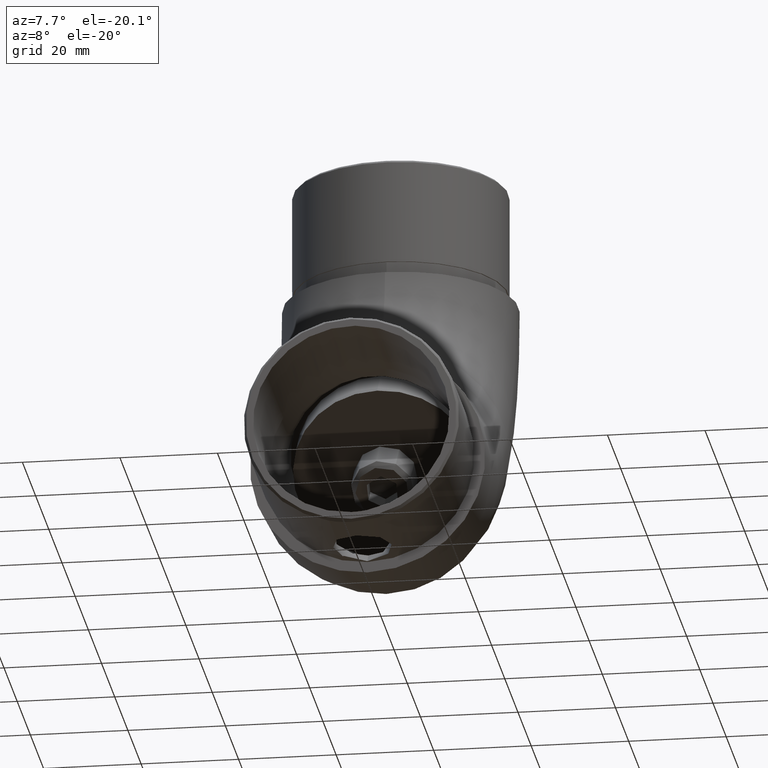
[diagram: clean part render]
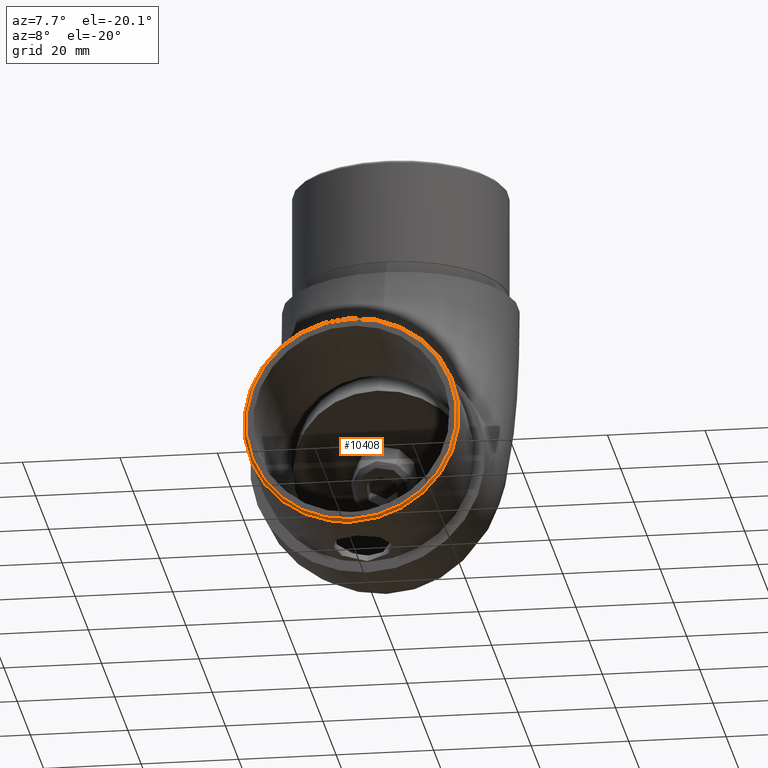
[diagram: same view with one face highlighted and labeled with its STEP entity id]
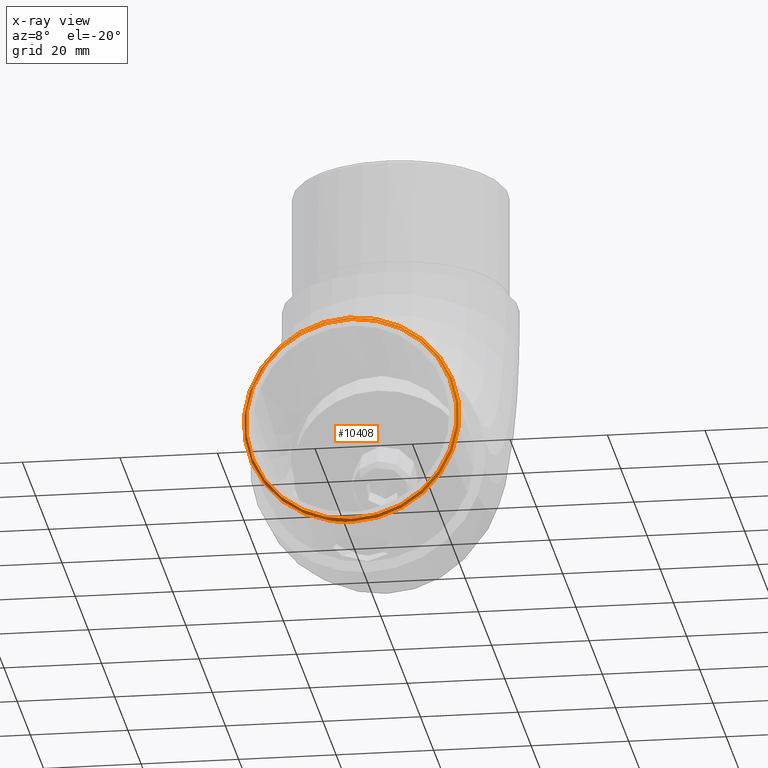
[diagram: x-ray of the same camera — body ghosted, the highlighted face saturated]
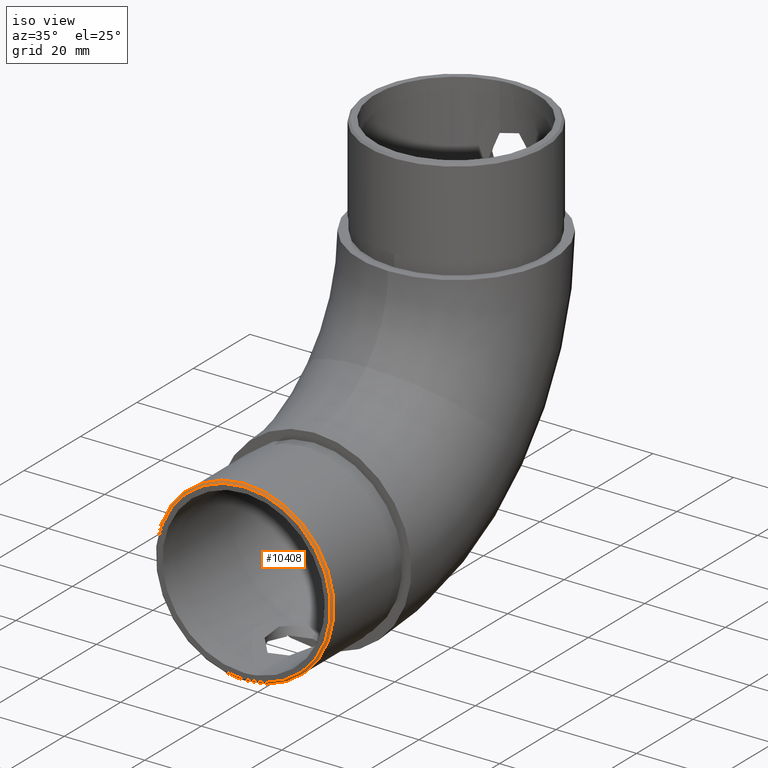
[diagram: same view with one face highlighted and labeled with its STEP entity id]
A machine part, auxiliary view. The second image highlights one B-rep face of the part: STEP entity #10408.
The next image is the same camera in x-ray: the body ghosted, the highlighted face saturated — about 0% of this face is hidden behind the body in this view.
A second angle (iso view) of the same face is appended — the face is thin or edge-on in the first view.
In plain terms, the highlighted conical surface has half-angle 45 deg.
Its self-contained STEP definition (entity closure, byte-faithful):
#210 = DIRECTION ( 'NONE',  ( 0.0000000000000000000, 0.0000000000000000000, -1.000000000000000000 ) ) ;
#586 = CARTESIAN_POINT ( 'NONE',  ( 0.0000000000000000000, -24.99999999999999600, -21.59999999999999400 ) ) ;
#662 = FACE_OUTER_BOUND ( 'NONE', #3317, .T. ) ;
#785 = CARTESIAN_POINT ( 'NONE',  ( 0.0000000000000000000, -24.99999999999999600, 0.0000000000000000000 ) ) ;
#823 = EDGE_CURVE ( 'NONE', #15020, #15020, #13797, .T. ) ;
#1933 = DIRECTION ( 'NONE',  ( 0.0000000000000000000, 1.000000000000000000, 0.0000000000000000000 ) ) ;
#2703 = DIRECTION ( 'NONE',  ( 0.0000000000000000000, -1.000000000000000000, 0.0000000000000000000 ) ) ;
#3207 = CONICAL_SURFACE ( 'NONE', #7878, 21.59999999999999400, 0.7853981633974415100 ) ;
#3317 = EDGE_LOOP ( 'NONE', ( #4252 ) ) ;
#4252 = ORIENTED_EDGE ( 'NONE', *, *, #823, .F. ) ;
#4529 = EDGE_CURVE ( 'NONE', #12301, #12301, #16081, .T. ) ;
#5361 = CARTESIAN_POINT ( 'NONE',  ( 0.0000000000000000000, -24.49999999999998200, 0.0000000000000000000 ) ) ;
#6311 = CARTESIAN_POINT ( 'NONE',  ( 0.0000000000000000000, -24.99999999999999600, 0.0000000000000000000 ) ) ;
#6767 = DIRECTION ( 'NONE',  ( 0.0000000000000000000, 0.0000000000000000000, 1.000000000000000000 ) ) ;
#7676 = DIRECTION ( 'NONE',  ( 0.0000000000000000000, 0.0000000000000000000, -1.000000000000000000 ) ) ;
#7878 = AXIS2_PLACEMENT_3D ( 'NONE', #785, #1933, #6767 ) ;
#9177 = CARTESIAN_POINT ( 'NONE',  ( 0.0000000000000000000, -24.49999999999998200, -22.10000000000000100 ) ) ;
#9442 = FACE_BOUND ( 'NONE', #12238, .T. ) ;
#9953 = ORIENTED_EDGE ( 'NONE', *, *, #4529, .F. ) ;
#10216 = DIRECTION ( 'NONE',  ( 0.0000000000000000000, 1.000000000000000000, 0.0000000000000000000 ) ) ;
#10408 = ADVANCED_FACE ( 'NONE', ( #662, #9442 ), #3207, .T. ) ;
#10447 = AXIS2_PLACEMENT_3D ( 'NONE', #5361, #10216, #210 ) ;
#12238 = EDGE_LOOP ( 'NONE', ( #9953 ) ) ;
#12301 = VERTEX_POINT ( 'NONE', #586 ) ;
#13797 = CIRCLE ( 'NONE', #10447, 22.10000000000000100 ) ;
#15020 = VERTEX_POINT ( 'NONE', #9177 ) ;
#15384 = AXIS2_PLACEMENT_3D ( 'NONE', #6311, #2703, #7676 ) ;
#16081 = CIRCLE ( 'NONE', #15384, 21.59999999999999400 ) ;